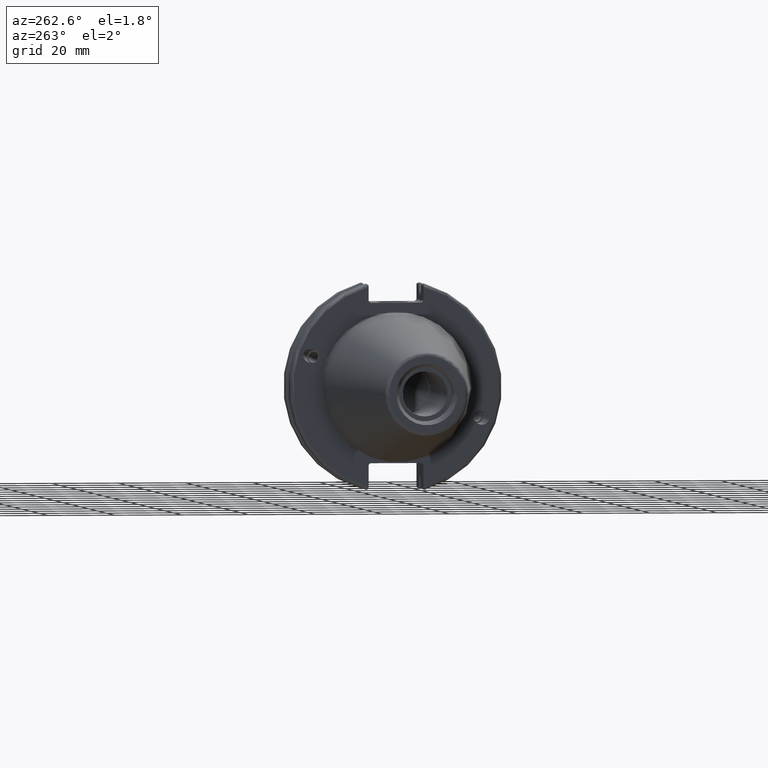
[diagram: clean part render]
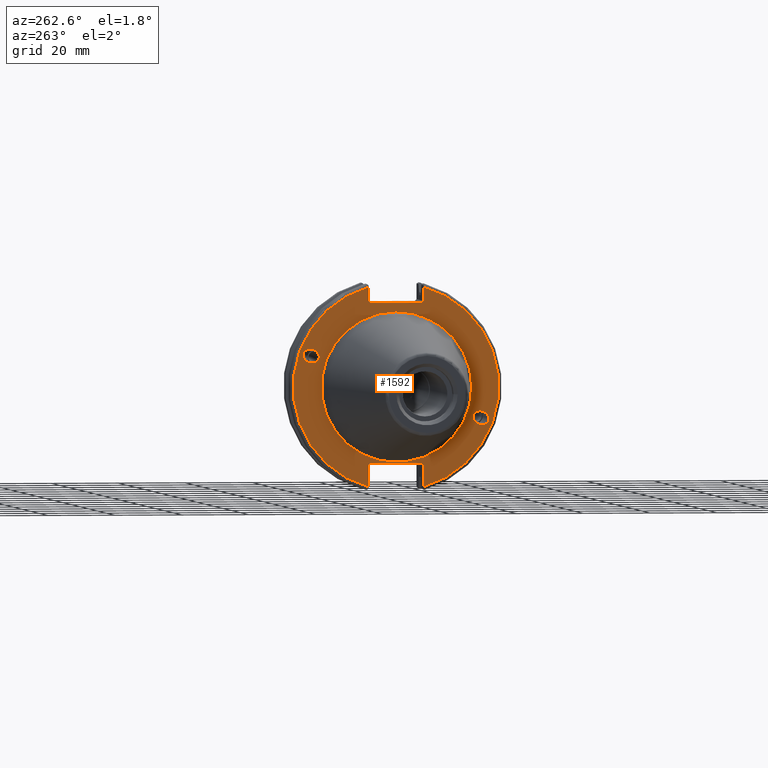
[diagram: same view with one face highlighted and labeled with its STEP entity id]
A machine part, auxiliary view. The second image highlights one B-rep face of the part: STEP entity #1592.
In plain terms, the highlighted planar face has unit normal (-1, 0, 0).
Its self-contained STEP definition (entity closure, byte-faithful):
#76=FACE_BOUND('',#326,.T.);
#77=FACE_BOUND('',#327,.T.);
#78=FACE_BOUND('',#328,.T.);
#93=PLANE('',#1774);
#137=ELLIPSE('',#1721,2.44154917752292,2.00000000000001);
#146=ELLIPSE('',#1764,2.44154917752292,2.00000000000001);
#223=FACE_OUTER_BOUND('',#325,.T.);
#325=EDGE_LOOP('',(#1278,#1279,#1280,#1281,#1282,#1283,#1284,#1285,#1286,
#1287,#1288,#1289));
#326=EDGE_LOOP('',(#1290));
#327=EDGE_LOOP('',(#1291));
#328=EDGE_LOOP('',(#1292));
#418=LINE('',#2813,#515);
#419=LINE('',#2815,#516);
#420=LINE('',#2817,#517);
#421=LINE('',#2819,#518);
#422=LINE('',#2821,#519);
#423=LINE('',#2825,#520);
#424=LINE('',#2827,#521);
#425=LINE('',#2829,#522);
#426=LINE('',#2831,#523);
#427=LINE('',#2832,#524);
#515=VECTOR('',#2120,10.);
#516=VECTOR('',#2121,10.);
#517=VECTOR('',#2122,10.);
#518=VECTOR('',#2123,10.);
#519=VECTOR('',#2124,10.);
#520=VECTOR('',#2127,10.);
#521=VECTOR('',#2128,10.);
#522=VECTOR('',#2129,10.);
#523=VECTOR('',#2130,10.);
#524=VECTOR('',#2131,10.);
#617=CIRCLE('',#1772,22.3);
#619=CIRCLE('',#1775,30.75);
#620=CIRCLE('',#1776,30.75);
#697=VERTEX_POINT('',#2606);
#737=VERTEX_POINT('',#2789);
#742=VERTEX_POINT('',#2804);
#743=VERTEX_POINT('',#2809);
#744=VERTEX_POINT('',#2810);
#745=VERTEX_POINT('',#2812);
#746=VERTEX_POINT('',#2814);
#747=VERTEX_POINT('',#2816);
#748=VERTEX_POINT('',#2818);
#749=VERTEX_POINT('',#2820);
#750=VERTEX_POINT('',#2822);
#751=VERTEX_POINT('',#2824);
#752=VERTEX_POINT('',#2826);
#753=VERTEX_POINT('',#2828);
#754=VERTEX_POINT('',#2830);
#876=EDGE_CURVE('',#697,#697,#137,.T.);
#932=EDGE_CURVE('',#737,#737,#146,.T.);
#939=EDGE_CURVE('',#742,#742,#617,.T.);
#941=EDGE_CURVE('',#743,#744,#619,.T.);
#942=EDGE_CURVE('',#743,#745,#418,.T.);
#943=EDGE_CURVE('',#746,#745,#419,.T.);
#944=EDGE_CURVE('',#746,#747,#420,.T.);
#945=EDGE_CURVE('',#748,#747,#421,.T.);
#946=EDGE_CURVE('',#748,#749,#422,.T.);
#947=EDGE_CURVE('',#750,#749,#620,.T.);
#948=EDGE_CURVE('',#750,#751,#423,.T.);
#949=EDGE_CURVE('',#752,#751,#424,.T.);
#950=EDGE_CURVE('',#752,#753,#425,.T.);
#951=EDGE_CURVE('',#754,#753,#426,.T.);
#952=EDGE_CURVE('',#754,#744,#427,.T.);
#1278=ORIENTED_EDGE('',*,*,#941,.F.);
#1279=ORIENTED_EDGE('',*,*,#942,.T.);
#1280=ORIENTED_EDGE('',*,*,#943,.F.);
#1281=ORIENTED_EDGE('',*,*,#944,.T.);
#1282=ORIENTED_EDGE('',*,*,#945,.F.);
#1283=ORIENTED_EDGE('',*,*,#946,.T.);
#1284=ORIENTED_EDGE('',*,*,#947,.F.);
#1285=ORIENTED_EDGE('',*,*,#948,.T.);
#1286=ORIENTED_EDGE('',*,*,#949,.F.);
#1287=ORIENTED_EDGE('',*,*,#950,.T.);
#1288=ORIENTED_EDGE('',*,*,#951,.F.);
#1289=ORIENTED_EDGE('',*,*,#952,.T.);
#1290=ORIENTED_EDGE('',*,*,#876,.T.);
#1291=ORIENTED_EDGE('',*,*,#932,.T.);
#1292=ORIENTED_EDGE('',*,*,#939,.F.);
#1592=ADVANCED_FACE('',(#223,#76,#77,#78),#93,.T.);
#1721=AXIS2_PLACEMENT_3D('',#2608,#1991,#1992);
#1764=AXIS2_PLACEMENT_3D('',#2791,#2094,#2095);
#1772=AXIS2_PLACEMENT_3D('',#2806,#2112,#2113);
#1774=AXIS2_PLACEMENT_3D('',#2808,#2116,#2117);
#1775=AXIS2_PLACEMENT_3D('',#2811,#2118,#2119);
#1776=AXIS2_PLACEMENT_3D('',#2823,#2125,#2126);
#1991=DIRECTION('center_axis',(1.,0.,0.));
#1992=DIRECTION('ref_axis',(5.68400912649E-17,-0.939692620785909,-0.342020143325667));
#2094=DIRECTION('center_axis',(1.,0.,0.));
#2095=DIRECTION('ref_axis',(5.68400912649E-17,0.939692620785909,0.342020143325667));
#2112=DIRECTION('center_axis',(-1.,0.,0.));
#2113=DIRECTION('ref_axis',(0.,-1.,1.83697019872103E-16));
#2116=DIRECTION('center_axis',(-1.,0.,0.));
#2117=DIRECTION('ref_axis',(0.,0.,1.));
#2118=DIRECTION('center_axis',(1.,0.,0.));
#2119=DIRECTION('ref_axis',(0.,-1.,1.60812264967664E-16));
#2120=DIRECTION('',(0.,0.,-1.));
#2121=DIRECTION('',(0.,-0.70710678118655,0.707106781186545));
#2122=DIRECTION('',(0.,1.,0.));
#2123=DIRECTION('',(0.,-0.707106781186549,-0.707106781186546));
#2124=DIRECTION('',(0.,0.,1.));
#2125=DIRECTION('center_axis',(1.,0.,0.));
#2126=DIRECTION('ref_axis',(0.,1.,1.60812264967664E-16));
#2127=DIRECTION('',(0.,0.,1.));
#2128=DIRECTION('',(0.,0.707106781186549,-0.707106781186546));
#2129=DIRECTION('',(0.,-1.,0.));
#2130=DIRECTION('',(0.,0.707106781186549,0.707106781186546));
#2131=DIRECTION('',(0.,0.,-1.));
#2606=CARTESIAN_POINT('',(3.175,-23.0773950158153,-8.39948487016));
#2608=CARTESIAN_POINT('Origin',(3.175,-25.3717007612195,-9.23454386979305));
#2789=CARTESIAN_POINT('',(3.175,23.0773950158153,8.39948487016));
#2791=CARTESIAN_POINT('Origin',(3.175,25.3717007612195,9.23454386979306));
#2804=CARTESIAN_POINT('',(3.175,-2.7309623620986E-15,22.3));
#2806=CARTESIAN_POINT('Origin',(3.175,0.,0.));
#2808=CARTESIAN_POINT('Origin',(3.175,31.75,0.));
#2809=CARTESIAN_POINT('',(3.175,-8.18999999999999,29.6392712461019));
#2810=CARTESIAN_POINT('',(3.175,-8.19,-29.6392712461019));
#2811=CARTESIAN_POINT('Origin',(3.175,0.,0.));
#2812=CARTESIAN_POINT('',(3.175,-8.18999999999999,25.5));
#2813=CARTESIAN_POINT('',(3.175,-8.18999999999999,12.5));
#2814=CARTESIAN_POINT('',(3.175,-7.68999999999999,25.));
#2815=CARTESIAN_POINT('',(3.175,8.29500000000007,9.01500000000004));
#2816=CARTESIAN_POINT('',(3.175,7.69,25.));
#2817=CARTESIAN_POINT('',(3.175,15.875,25.));
#2818=CARTESIAN_POINT('',(3.175,8.19,25.5));
#2819=CARTESIAN_POINT('',(3.175,7.58000000000002,24.89));
#2820=CARTESIAN_POINT('',(3.175,8.19,29.6392712461019));
#2821=CARTESIAN_POINT('',(3.175,8.19,12.5));
#2822=CARTESIAN_POINT('',(3.175,8.18999999999999,-29.6392712461019));
#2823=CARTESIAN_POINT('Origin',(3.175,0.,0.));
#2824=CARTESIAN_POINT('',(3.175,8.18999999999999,-23.1));
#2825=CARTESIAN_POINT('',(3.175,8.18999999999999,-11.3));
#2826=CARTESIAN_POINT('',(3.175,7.69,-22.6));
#2827=CARTESIAN_POINT('',(3.175,8.18000000000002,-23.09));
#2828=CARTESIAN_POINT('',(3.175,-7.69,-22.6));
#2829=CARTESIAN_POINT('',(3.175,15.875,-22.6));
#2830=CARTESIAN_POINT('',(3.175,-8.19,-23.1));
#2831=CARTESIAN_POINT('',(3.175,7.69500000000004,-7.21500000000002));
#2832=CARTESIAN_POINT('',(3.175,-8.19,-11.3));